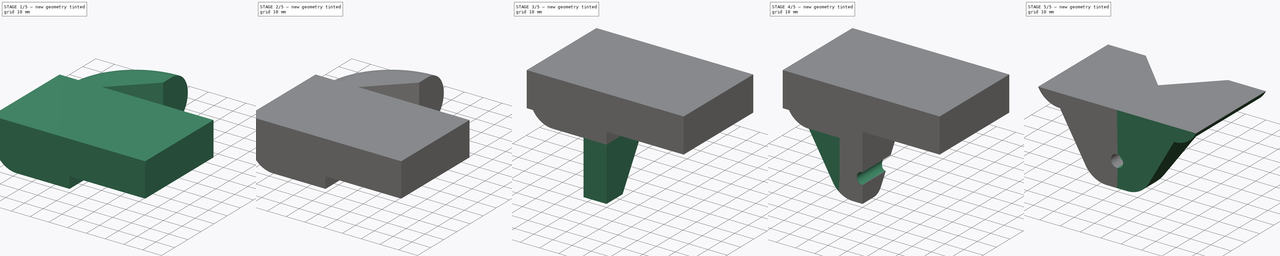
[diagram: build sequence overview — one tinted view per stage of 5, left to right]
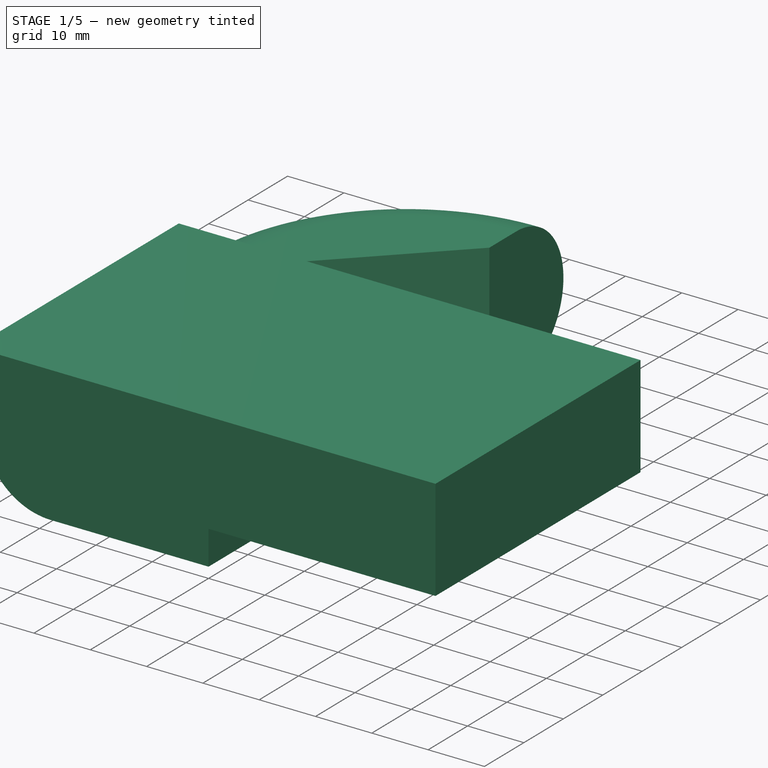
[diagram: stage 1 of 5 — iso view after this stage's code; geometry added in this stage tinted green]
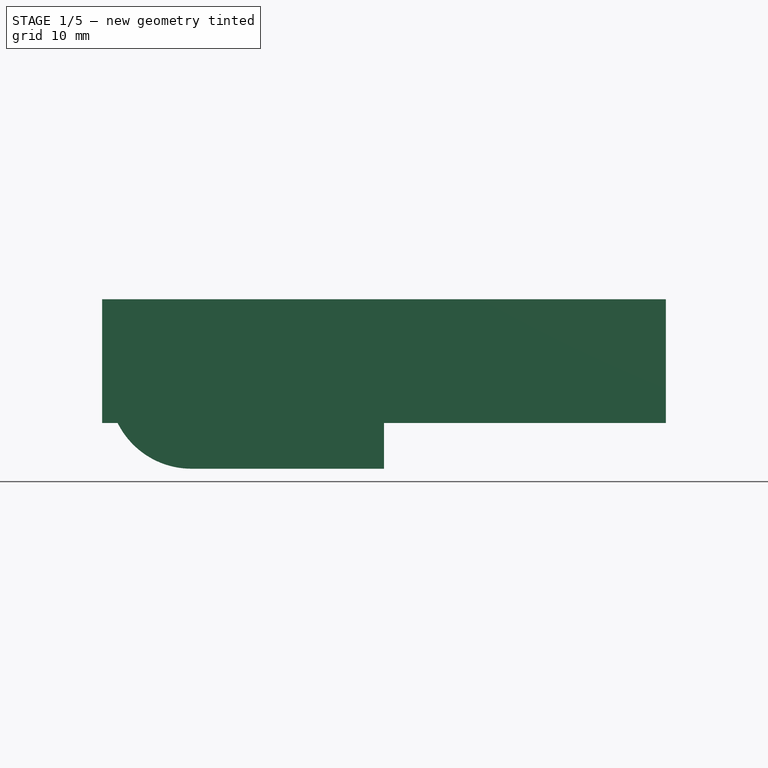
[diagram: stage 1 of 5 — front view after this stage's code; geometry added in this stage tinted green]
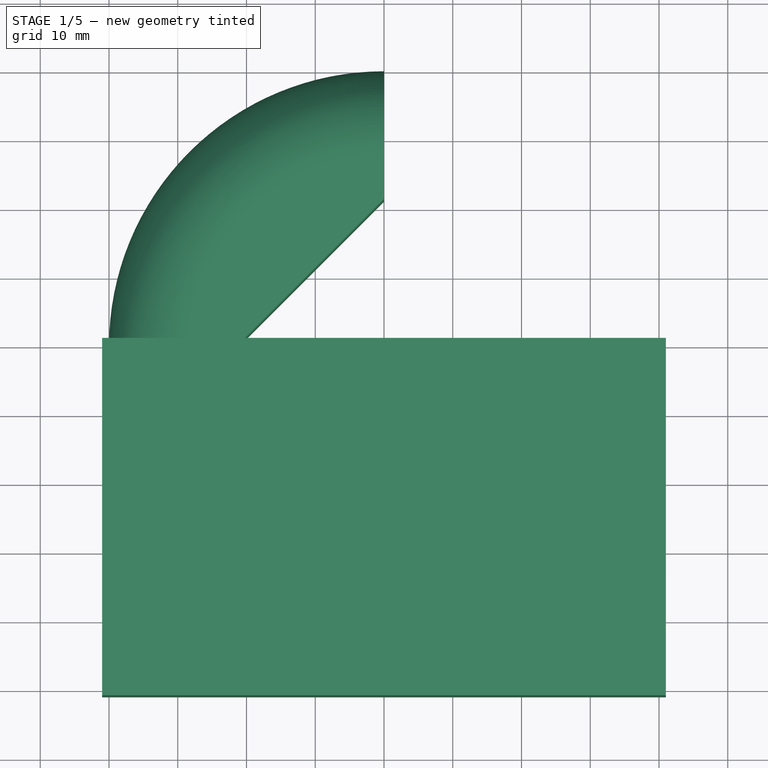
[diagram: stage 1 of 5 — top view after this stage's code; geometry added in this stage tinted green]
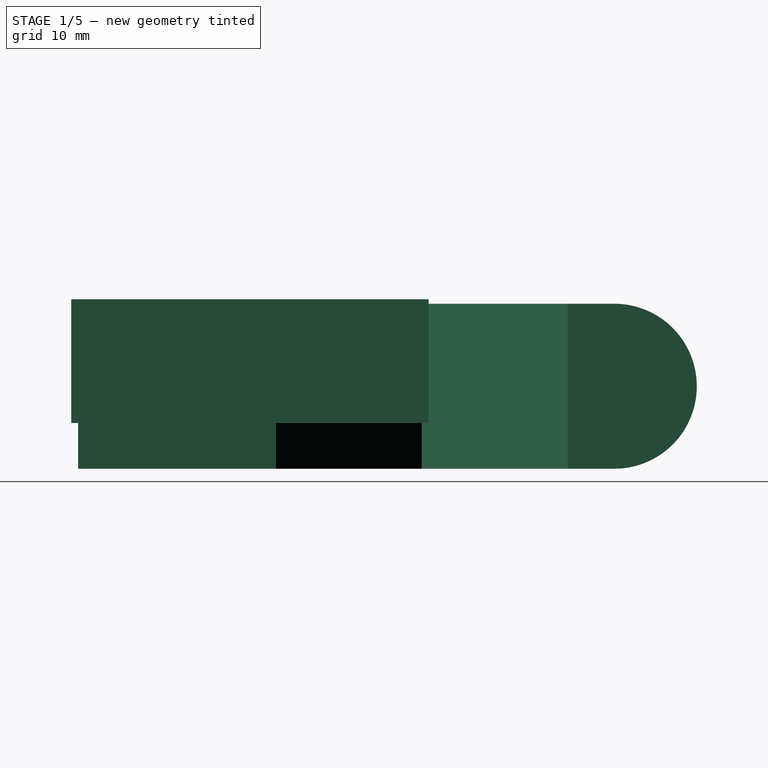
[diagram: stage 1 of 5 — right view after this stage's code; geometry added in this stage tinted green]
FCSTD DOCUMENT  (FreeCAD 0.20R29410 (Git))
Label: Cut_LinearProfileMountingDownPart
License: All rights reserved
LicenseURL: http://en.wikipedia.org/wiki/All_rights_reserved
objects: Sketcher::SketchObject×12, PartDesign::Pocket×6, PartDesign::Plane×5, PartDesign::Fillet×4, PartDesign::Hole×3, PartDesign::Pad×2, PartDesign::Chamfer×1, PartDesign::AdditiveLoft×1, PartDesign::Body×1, Part::Mirroring×1, Part::MultiFuse×1, Part::Box×1, App::Part×1, Part::Cut×1
note: 56 computed .brp shape members not serialized (recipe doc carries the construction recipe); baked Part::Feature solids carry a one-line shape summary decoded from their .brp

FEATURE [Sketcher::SketchObject] Sketch
  FullyConstrained = false
  MapMode = 5
  Support = -> [XY_Plane]
  sketch-geometry (11):
    g0: LineSegment StartX=-21.2132 StartY=50 StartZ=0 EndX=0 EndY=71.2132 EndZ=0
    g1: LineSegment StartX=0 StartY=28.7868 StartZ=0 EndX=-21.2132 EndY=50 EndZ=0
    g2: LineSegment StartX=-40 StartY=50 StartZ=0 EndX=36.3665 EndY=50 EndZ=0
    g3: GeomPoint X=0 Y=50 Z=0
    g4: LineSegment StartX=-40 StartY=50 StartZ=0 EndX=-40 EndY=0 EndZ=0
    g5: LineSegment StartX=-40 StartY=0 StartZ=0 EndX=-40 EndY=15 EndZ=0
    g6: GeomPoint X=0 Y=0 Z=0
    g7: ArcOfCircle CenterX=0 CenterY=50 CenterZ=0 NormalX=0 NormalY=0 NormalZ=1 AngleXU=0 Radius=40 StartAngle=1.5708 EndAngle=3.14159
    g8: LineSegment StartX=-40 StartY=0 StartZ=0 EndX=0 EndY=0 EndZ=0
    g9: LineSegment StartX=0 StartY=0 StartZ=0 EndX=0 EndY=28.7868 EndZ=0
    g10: LineSegment StartX=0 StartY=71.2132 StartZ=0 EndX=2.4e-15 EndY=90 EndZ=0
  constraints (29):
    c: PointOnObject(g0,g-2)
    c: Coincident(g1,g0)
    c: Coincident(g2,g7)
    c: Horizontal(g2)
    c: DistanceY(g7,g0) = 0
    c: DistanceX(g2,g2) = 76.3665
    c: Coincident(g4,g7)
    c: PointOnObject(g4,g-1)
    c: Vertical(g4)
    c: PointOnObject(g5,g-1)
    c: Vertical(g5)
    c: DistanceY(g5,g5) = 15
    c: Coincident(g6,g-1)
    c: PointOnObject(g7,g-2)
    c: Radius(g7) = 40
    c: Coincident(g4,g8)
    c: Coincident(g8,g6)
    c: Coincident(g8,g9)
    c: Coincident(g9,g1)
    c: Vertical(g9)
    c: Coincident(g10,g0)
    c: Coincident(g10,g7)
    c: Coincident(g7,g3)
    c: DistanceY(g8,g7) = 50
    c: PointOnObject(g7,g-2)
    c: Equal(g0,g1)
    c: Distance(g0) = 30
    c: Perpendicular(g1,g0)
    c: DistanceY(g7,g0) = 0
FEATURE [PartDesign::Pad] Pad
  Direction = (0,0,1)
  Length = 24
  Length2 = 10
  Profile = -> Sketch
  ReferenceAxis = -> Sketch [N_Axis]
  Type = 0
FEATURE [Sketcher::SketchObject] Sketch001
  ExternalGeometry = -> [Pad]
  FullyConstrained = true
  MapMode = 5
  Placement = pos=(0,0,0) rot=(1,0,0;1.5708rad)
  Support = -> [Pad]
FEATURE [PartDesign::Fillet] Fillet
  Base = -> Pad [Edge10]
  BaseFeature = -> Pad
  Radius = 11.99
  SupportTransform = false
  UseAllEdges = false
FEATURE [PartDesign::Fillet] Fillet001
  Base = -> Fillet [Edge7]
  BaseFeature = -> Fillet
  Radius = 11.99
  SupportTransform = false
  UseAllEdges = false
FEATURE [Part::Box] Box  label="Sześcian"
  AttacherType = Attacher::AttachEngine3D
  Height = 18
  Length = 82
  Placement = pos=(-41,-1,6.65) rot=(0,0,1;0rad)
  Width = 52
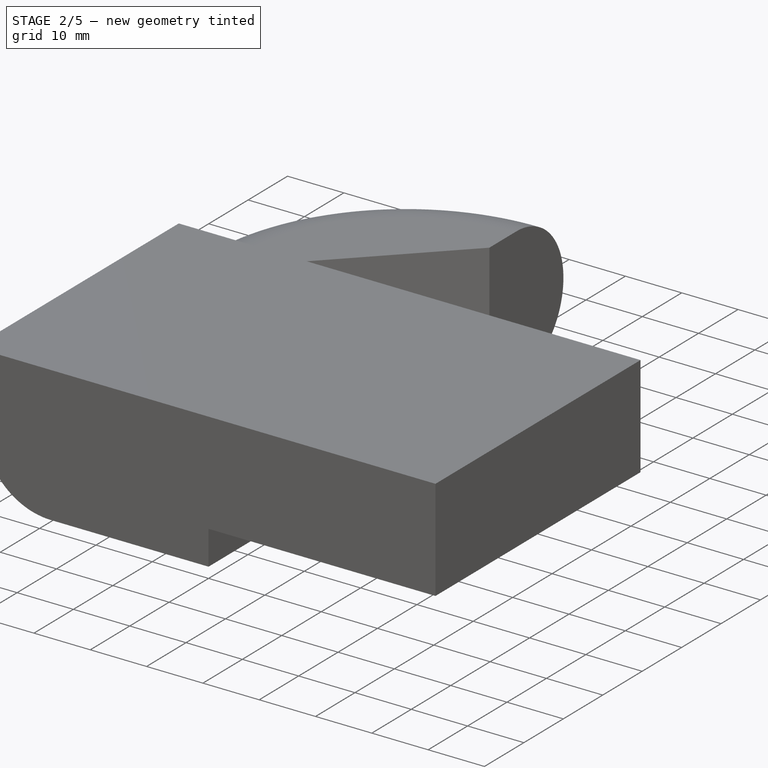
[diagram: stage 2 of 5 — iso view after this stage's code; geometry added in this stage tinted green]
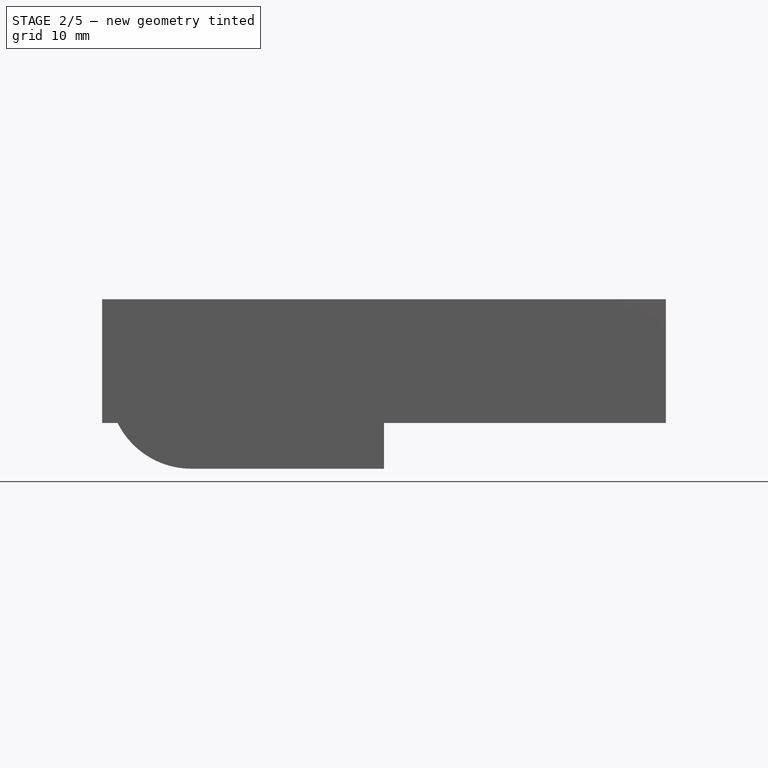
[diagram: stage 2 of 5 — front view after this stage's code; geometry added in this stage tinted green]
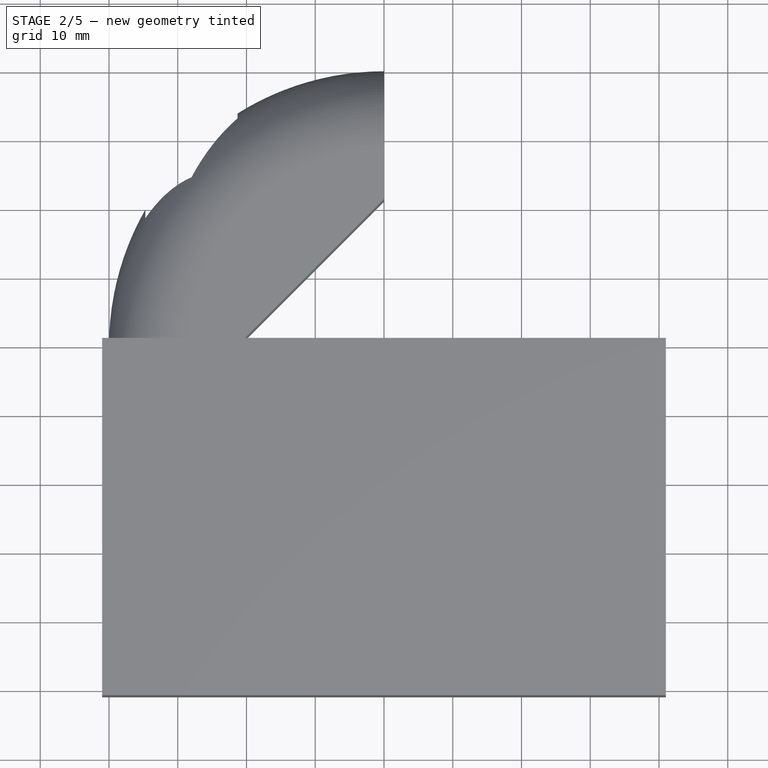
[diagram: stage 2 of 5 — top view after this stage's code; geometry added in this stage tinted green]
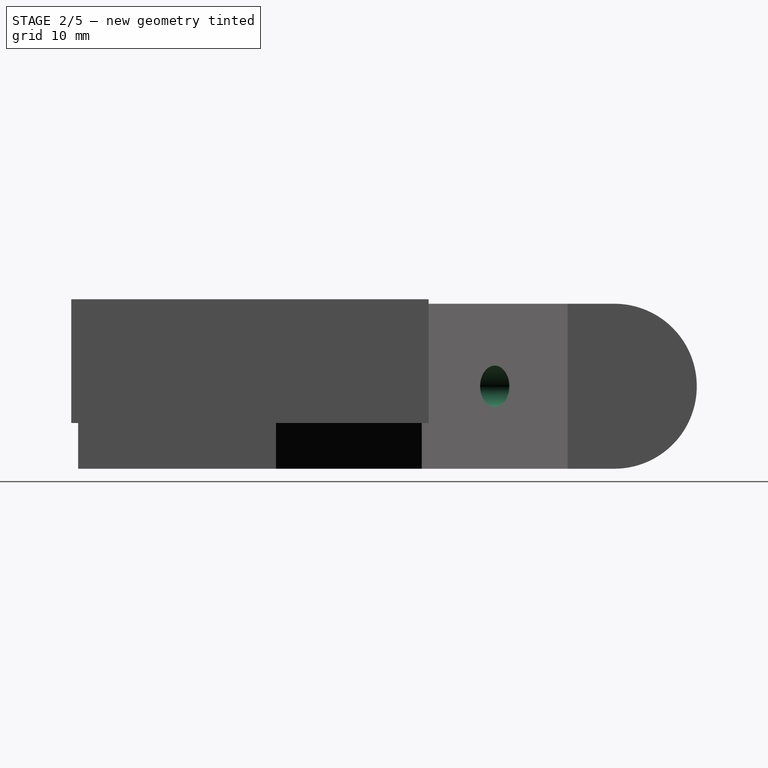
[diagram: stage 2 of 5 — right view after this stage's code; geometry added in this stage tinted green]
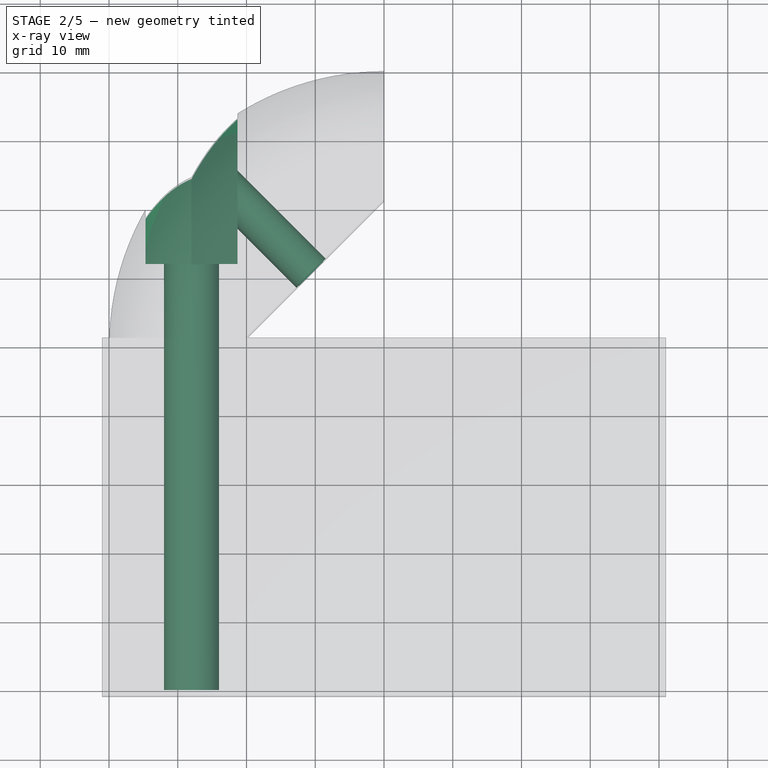
[diagram: stage 2 of 5 — x-ray composite at the top view; earlier geometry ghosted, this stage's added geometry solid]
FEATURE [Sketcher::SketchObject] Sketch002
  ExternalGeometry = -> [Fillet001]
  FullyConstrained = true
  MapMode = 5
  Placement = pos=(0,0,0) rot=(1,0,0;1.5708rad)
  Support = -> [Fillet001]
  sketch-geometry (1):
    g0: Circle CenterX=-28.01 CenterY=12.01 CenterZ=0 NormalX=0 NormalY=0 NormalZ=1 AngleXU=0 Radius=4.02
  constraints (2):
    c: Coincident(g0,g-3)
    c: Radius(g0) = 4.02
FEATURE [PartDesign::Hole] Hole
  BaseFeature = -> Fillet001
  CustomThreadClearance = 0
  Depth = 204.769
  DepthType = 1
  Diameter = 8.04
  DrillForDepth = false
  DrillPoint = 1
  DrillPointAngle = 118
  HoleCutCountersinkAngle = 90
  HoleCutCustomValues = false
  HoleCutDepth = 0
  HoleCutDiameter = 0
  HoleCutType = 0
  ModelThread = false
  Profile = -> Fillet001 [Face12]
  Reversed = true
  Tapered = false
  TaperedAngle = 90
  ThreadClass = 0
  ThreadDepth = 204.769
  ThreadDepthType = 0
  ThreadDirection = 0
  ThreadFit = 0
  ThreadSize = 0
  ThreadType = 0
  Threaded = false
  UseCustomThreadClearance = false
FEATURE [PartDesign::Pocket] Pocket
  BaseFeature = -> Hole
  Direction = (0,1,-2e-16)
  Length = 100
  Length2 = 5
  Profile = -> Sketch002
  ReferenceAxis = -> Sketch002 [N_Axis]
  Type = 0
FEATURE [PartDesign::Plane] DatumPlane
  AttachmentOffset = pos=(0,0,12) rot=(0,0,1;0rad)
  Length = 64.7388
  MapMode = 11
  Placement = pos=(-28.01,62,12.01) rot=(0.57735,0.57735,0.57735;4.18879rad)
  ResizeMode = 0
  Support = -> [Pocket]
  Width = 76.7388
FEATURE [Sketcher::SketchObject] Sketch003
  ExternalGeometry = -> [Pocket]
  FullyConstrained = true
  MapMode = 5
  Placement = pos=(-28.01,62,12.01) rot=(0.57735,0.57735,0.57735;4.18879rad)
  Support = -> [DatumPlane]
  sketch-geometry (7):
    g0: LineSegment StartX=7.73649 StartY=0 StartZ=0 EndX=3.86825 EndY=6.7 EndZ=0
    g1: LineSegment StartX=3.86825 StartY=6.7 StartZ=0 EndX=-3.86825 EndY=6.7 EndZ=0
    g2: LineSegment StartX=-3.86825 StartY=6.7 StartZ=0 EndX=-7.73649 EndY=-1.0232e-12 EndZ=0
    g3: LineSegment StartX=-7.73649 StartY=-1.0232e-12 StartZ=0 EndX=-3.86825 EndY=-6.7 EndZ=0
    g4: LineSegment StartX=-3.86825 StartY=-6.7 StartZ=0 EndX=3.86825 EndY=-6.7 EndZ=0
    g5: LineSegment StartX=3.86825 StartY=-6.7 StartZ=0 EndX=7.73649 EndY=0 EndZ=0
    g6: Circle CenterX=0 CenterY=0 CenterZ=0 NormalX=0 NormalY=0 NormalZ=1 AngleXU=0 Radius=7.73649
  constraints (16):
    c: Coincident(g0,g1)
    c: Coincident(g1,g2)
    c: Coincident(g2,g3)
    c: Coincident(g3,g4)
    c: Coincident(g4,g5)
    c: Coincident(g5,g0)
    c: Equal(g0, g1-g5) x5
    c: PointOnObject(g0,g6)
    c: PointOnObject(g1,g6)
    c: PointOnObject(g2,g6)
    c: PointOnObject(g3,g6)
    c: PointOnObject(g4,g6)
    c: PointOnObject(g5,g6)
    c: Coincident(g6,g-1)
    c: PointOnObject(g5,g-1)
    c: DistanceY(g3,g1) = 13.4
FEATURE [PartDesign::Pocket] Pocket001
  BaseFeature = -> Pocket
  Direction = (-2e-16,-1,-2e-16)
  Length = 27
  Length2 = 5
  Profile = -> Sketch003
  ReferenceAxis = -> Sketch003 [N_Axis]
  Reversed = true
  Type = 0
FEATURE [PartDesign::Plane] DatumPlane001
  Length = 64.7388
  MapMode = 11
  Placement = pos=(-28.01,50,12.01) rot=(0.57735,0.57735,0.57735;4.18879rad)
  ResizeMode = 0
  Support = -> [Pocket001]
  Width = 76.7388
FEATURE [Sketcher::SketchObject] Sketch004
  ExternalGeometry = -> [Pocket001]
  FullyConstrained = true
  MapMode = 5
  Placement = pos=(-28.01,50,12.01) rot=(0.57735,0.57735,0.57735;4.18879rad)
  Support = -> [DatumPlane001]
  sketch-geometry (4):
    g0: LineSegment StartX=-13.01 StartY=29.01 StartZ=0 EndX=12.99 EndY=29.01 EndZ=0
    g1: LineSegment StartX=12.99 StartY=29.01 StartZ=0 EndX=12.99 EndY=-12.99 EndZ=0
    g2: LineSegment StartX=12.99 StartY=-12.99 StartZ=0 EndX=-13.01 EndY=-12.99 EndZ=0
    g3: LineSegment StartX=-13.01 StartY=-12.99 StartZ=0 EndX=-13.01 EndY=29.01 EndZ=0
  constraints (12):
    c: Coincident(g0,g1)
    c: Coincident(g1,g2)
    c: Coincident(g2,g3)
    c: Coincident(g3,g0)
    c: Horizontal(g0)
    c: Horizontal(g2)
    c: Vertical(g1)
    c: Vertical(g3)
    c: DistanceX(g0,g-3) = 1
    c: DistanceY(g2,g-5) = 1
    c: DistanceX(g-4,g0) = 1
    c: DistanceY(g-6,g0) = 1
FEATURE [PartDesign::Plane] DatumPlane002
  Length = 112.723
  MapMode = 5
  Placement = pos=(-35.6066,35.6066,0) rot=(0.862856,0.357407,0.357407;1.71777rad)
  ResizeMode = 0
  Support = -> [Pocket001]
  Width = 67.435
FEATURE [Sketcher::SketchObject] Sketch005
  ExternalGeometry = -> [Pocket001]
  FullyConstrained = true
  MapMode = 5
  Placement = pos=(-35.6066,35.6066,0) rot=(0.862856,0.357407,0.357407;1.71777rad)
  Support = -> [DatumPlane002]
  sketch-geometry (1):
    g0: Circle CenterX=35.3553 CenterY=12 CenterZ=0 NormalX=0 NormalY=0 NormalZ=1 AngleXU=0 Radius=4.02
  constraints (2):
    c: Radius(g0) = 4.02
    c: Symmetric(g-4,g-3,g0)
FEATURE [PartDesign::Hole] Hole001
  BaseFeature = -> Pocket001
  CustomThreadClearance = 0
  Depth = 204.769
  DepthType = 1
  Diameter = 6
  DrillForDepth = false
  DrillPoint = 1
  DrillPointAngle = 118
  HoleCutCountersinkAngle = 90
  HoleCutCustomValues = false
  HoleCutDepth = 0
  HoleCutDiameter = 6.1
  HoleCutType = 0
  ModelThread = false
  Profile = -> Sketch005
  Tapered = false
  TaperedAngle = 90
  ThreadClass = 0
  ThreadDepth = 204.769
  ThreadDepthType = 0
  ThreadDirection = 0
  ThreadFit = 0
  ThreadSize = 0
  ThreadType = 0
  Threaded = false
  UseCustomThreadClearance = false
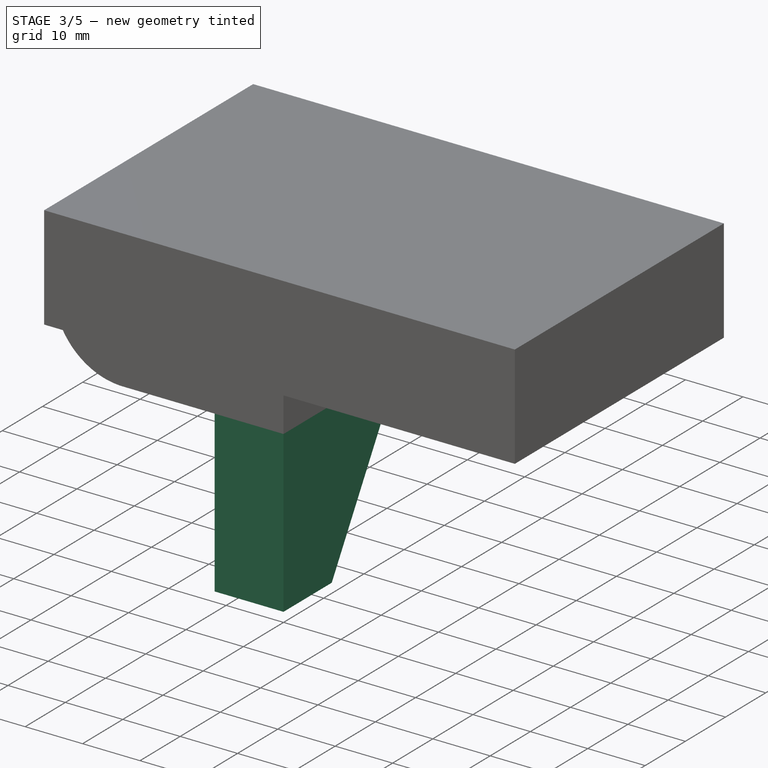
[diagram: stage 3 of 5 — iso view after this stage's code; geometry added in this stage tinted green]
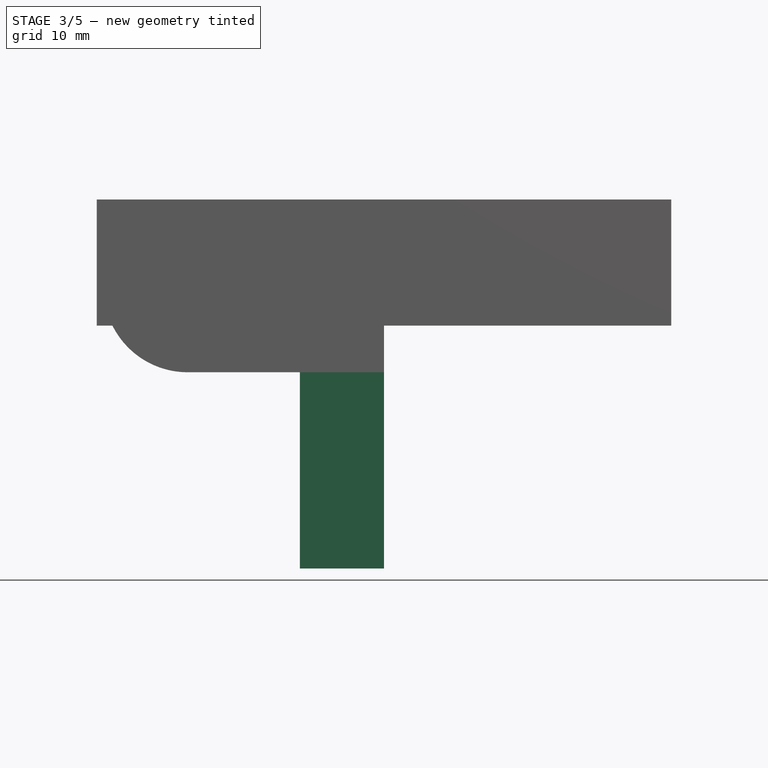
[diagram: stage 3 of 5 — front view after this stage's code; geometry added in this stage tinted green]
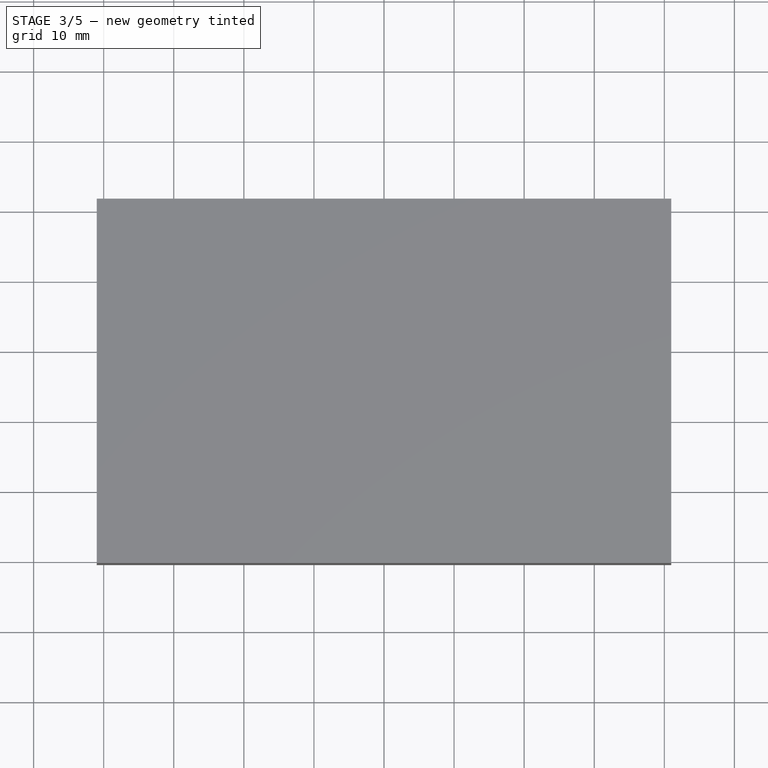
[diagram: stage 3 of 5 — top view after this stage's code; geometry added in this stage tinted green]
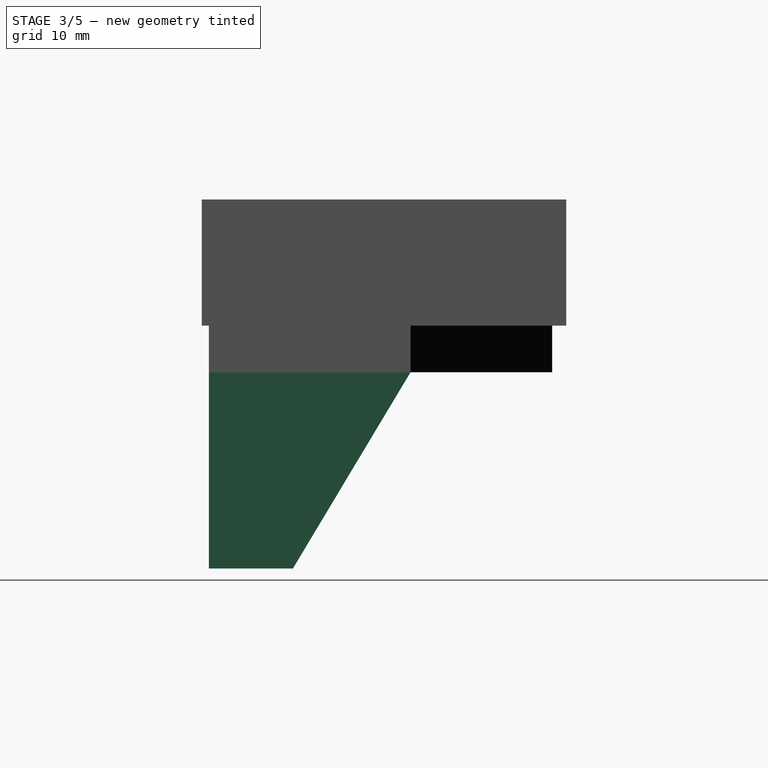
[diagram: stage 3 of 5 — right view after this stage's code; geometry added in this stage tinted green]
FEATURE [PartDesign::Plane] DatumPlane003
  AttachmentOffset = pos=(0,0,-6) rot=(0,0,1;0rad)
  Length = 112.723
  MapMode = 5
  Placement = pos=(-39.8492,39.8492,0) rot=(0.862856,0.357407,0.357407;1.71777rad)
  ResizeMode = 0
  Support = -> [Hole001]
  Width = 67.435
FEATURE [Sketcher::SketchObject] Sketch006
  ExternalGeometry = -> [Hole001]
  FullyConstrained = true
  MapMode = 5
  Placement = pos=(-39.8492,39.8492,0) rot=(0.862856,0.357407,0.357407;1.71777rad)
  Support = -> [DatumPlane003]
  sketch-geometry (1):
    g0: Circle CenterX=35.3553 CenterY=12 CenterZ=0 NormalX=0 NormalY=0 NormalZ=1 AngleXU=0 Radius=6.5
  constraints (2):
    c: Coincident(g0,g-3)
    c: Radius(g0) = 6.5
FEATURE [PartDesign::Pocket] Pocket002
  BaseFeature = -> Hole001
  Direction = (-0.707107,0.707107,0)
  Length = 18
  Length2 = 5
  Profile = -> Sketch006
  ReferenceAxis = -> Sketch006 [N_Axis]
  Type = 0
FEATURE [PartDesign::Chamfer] Chamfer
  Angle = 45
  Base = -> Pocket002 [Edge64]
  BaseFeature = -> Pocket002
  ChamferType = 0
  FlipDirection = false
  Size = 3.4
  Size2 = 1
  SupportTransform = false
  UseAllEdges = false
  expr: Size = 3.4
FEATURE [PartDesign::Pocket] Pocket003
  BaseFeature = -> Chamfer
  Direction = (-2e-16,-1,-1e-16)
  Length = 500
  Length2 = 5
  Profile = -> DatumPlane001
  Reversed = true
  Type = 0
FEATURE [PartDesign::Pocket] Pocket004
  BaseFeature = -> Pocket003
  Direction = (-2e-16,-1,-2e-16)
  Length = 1
  Length2 = 5
  Profile = -> Sketch004
  ReferenceAxis = -> Sketch004 [N_Axis]
  Type = 0
FEATURE [Sketcher::SketchObject] Sketch007
  ExternalGeometry = -> [Pocket004]
  FullyConstrained = true
  MapMode = 5
  Placement = pos=(0,0,0) rot=(0.57735,0.57735,0.57735;2.0944rad)
  Support = -> [Pocket004]
  sketch-geometry (7):
    g0: LineSegment StartX=0 StartY=0 StartZ=0 EndX=0 EndY=-28 EndZ=0
    g1: LineSegment StartX=0 StartY=-28 StartZ=0 EndX=12 EndY=-28 EndZ=0
    g2: LineSegment StartX=12 StartY=-28 StartZ=0 EndX=28.7868 EndY=0 EndZ=0
    g3: GeomPoint X=0 Y=12 Z=0
    g4: LineSegment StartX=0 StartY=0 StartZ=0 EndX=0 EndY=1 EndZ=0
    g5: LineSegment StartX=0 StartY=1 StartZ=0 EndX=28.7868 EndY=1 EndZ=0
    g6: LineSegment StartX=28.7868 StartY=1 StartZ=0 EndX=28.7868 EndY=0 EndZ=0
  constraints (17):
    c: Coincident(g-1,g0)
    c: PointOnObject(g0,g-2)
    c: Coincident(g0,g1)
    c: Horizontal(g1)
    c: Coincident(g1,g2)
    c: Symmetric(g-3,g0,g3)
    c: DistanceY(g0,g3) = 40
    c: DistanceX(g1,g1) = 12
    c: Coincident(g2,g-4)
    c: Coincident(g0,g4)
    c: Vertical(g4)
    c: Coincident(g4,g5)
    c: PointOnObject(g5,g-4)
    c: Horizontal(g5)
    c: Coincident(g5,g6)
    c: Coincident(g6,g2)
    c: DistanceY(g6,g6) = 1
FEATURE [PartDesign::Pad] Pad001
  BaseFeature = -> Pocket004
  Direction = (1,0,0)
  Length = 12
  Length2 = 10
  Profile = -> Sketch007
  ReferenceAxis = -> Sketch007 [N_Axis]
  Reversed = true
  Type = 0
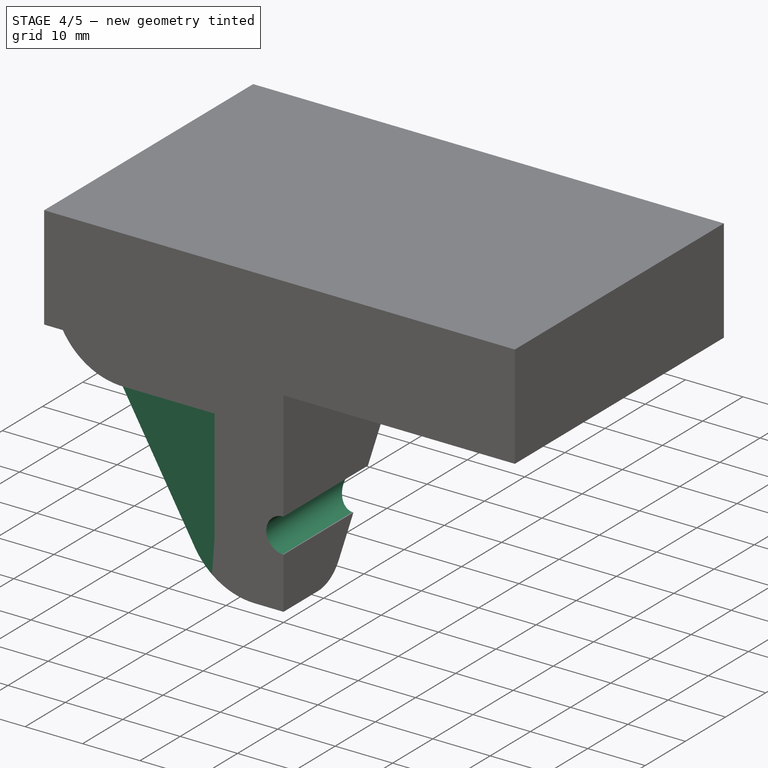
[diagram: stage 4 of 5 — iso view after this stage's code; geometry added in this stage tinted green]
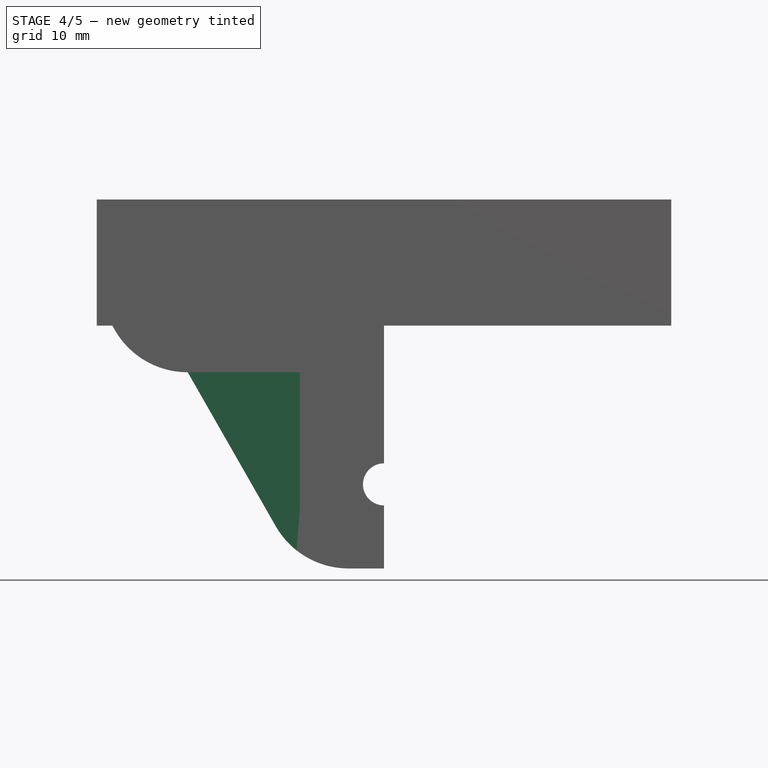
[diagram: stage 4 of 5 — front view after this stage's code; geometry added in this stage tinted green]
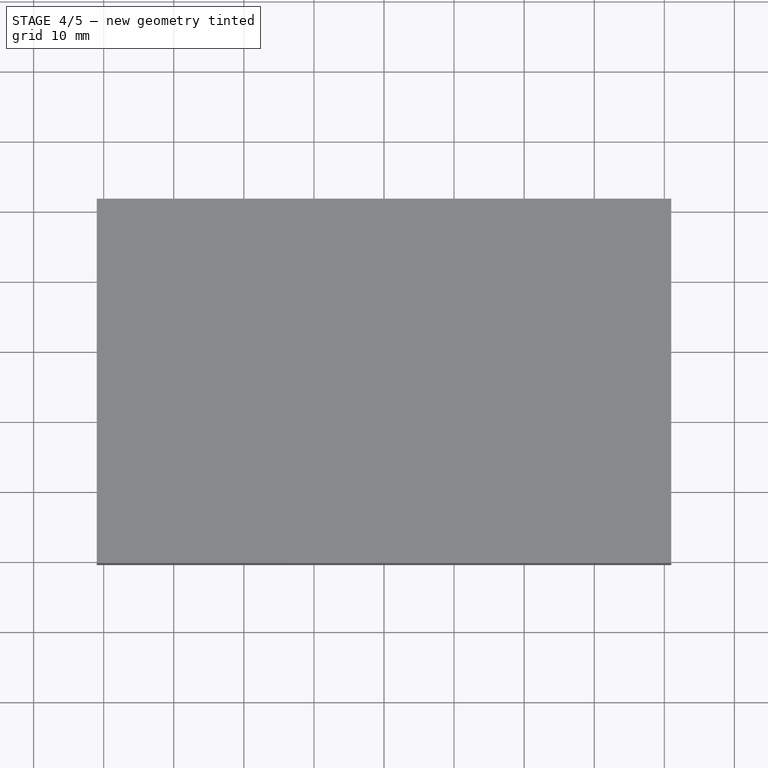
[diagram: stage 4 of 5 — top view after this stage's code; geometry added in this stage tinted green]
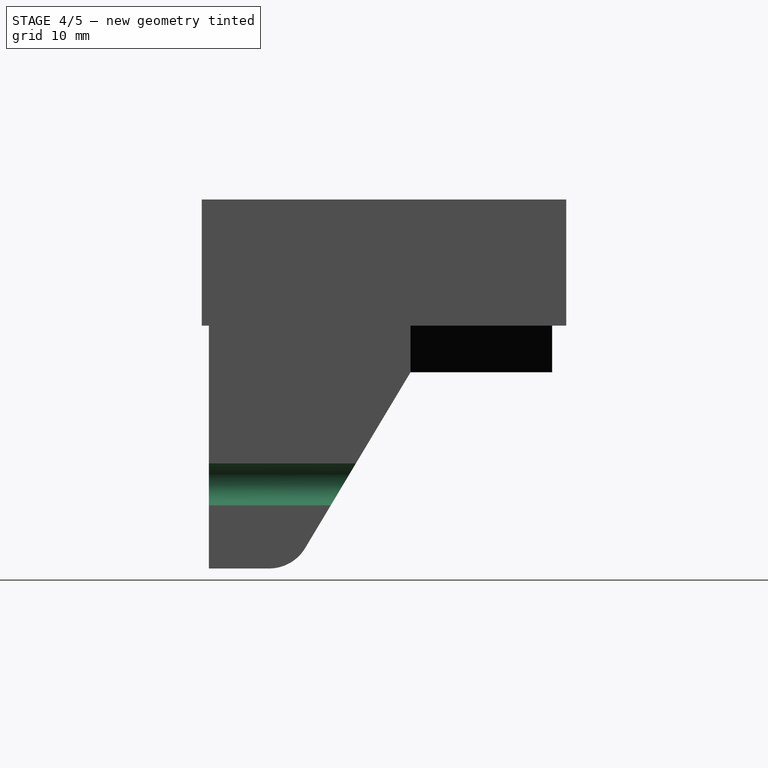
[diagram: stage 4 of 5 — right view after this stage's code; geometry added in this stage tinted green]
FEATURE [Sketcher::SketchObject] Sketch008
  ExternalGeometry = -> [Pad001]
  FullyConstrained = true
  MapMode = 5
  Placement = pos=(0,0,-28) rot=(1,0,0;3.14159rad)
  Support = -> [Pad001]
  sketch-geometry (4):
    g0: LineSegment StartX=-12 StartY=-12 StartZ=0 EndX=0 EndY=-12 EndZ=0
    g1: LineSegment StartX=0 StartY=-12 StartZ=0 EndX=0 EndY=0 EndZ=0
    g2: LineSegment StartX=0 StartY=0 StartZ=0 EndX=-12 EndY=0 EndZ=0
    g3: LineSegment StartX=-12 StartY=0 StartZ=0 EndX=-12 EndY=-12 EndZ=0
  constraints (10):
    c: Coincident(g0,g1)
    c: Coincident(g1,g2)
    c: Coincident(g2,g3)
    c: Coincident(g3,g0)
    c: Horizontal(g0)
    c: Horizontal(g2)
    c: Vertical(g1)
    c: Vertical(g3)
    c: Coincident(g0,g-3)
    c: Coincident(g1,g-5)
FEATURE [Sketcher::SketchObject] Sketch009
  ExternalGeometry = -> [Pad001]
  FullyConstrained = true
  MapMode = 5
  Placement = pos=(0,0,0) rot=(1,0,0;3.14159rad)
  Support = -> [Pad001]
  sketch-geometry (4):
    g0: LineSegment StartX=0 StartY=-28.7868 StartZ=0 EndX=-28.01 EndY=-28.7868 EndZ=0
    g1: LineSegment StartX=-28.01 StartY=-28.7868 StartZ=0 EndX=-28.01 EndY=0 EndZ=0
    g2: LineSegment StartX=-28.01 StartY=0 StartZ=0 EndX=0 EndY=0 EndZ=0
    g3: LineSegment StartX=0 StartY=0 StartZ=0 EndX=0 EndY=-28.7868 EndZ=0
  constraints (10):
    c: Coincident(g0,g1)
    c: Coincident(g1,g2)
    c: Coincident(g2,g3)
    c: Coincident(g3,g0)
    c: Horizontal(g0)
    c: Horizontal(g2)
    c: Vertical(g1)
    c: Vertical(g3)
    c: Coincident(g0,g-6)
    c: Coincident(g1,g-4)
FEATURE [PartDesign::AdditiveLoft] AdditiveLoft
  BaseFeature = -> Pad001
  Closed = false
  Profile = -> Sketch008
  Ruled = false
  Sections = -> [Sketch009]
FEATURE [Sketcher::SketchObject] Sketch010
  FullyConstrained = false
  MapMode = 5
  Placement = pos=(0,0,0) rot=(1,0,0;1.5708rad)
  sketch-geometry (1):
    g0: Circle CenterX=0 CenterY=-16 CenterZ=0 NormalX=0 NormalY=0 NormalZ=1 AngleXU=0 Radius=4.02
  constraints (2):
    c: PointOnObject(g0,g-2)
    c: Radius(g0) = 4.02
FEATURE [PartDesign::Hole] Hole002
  BaseFeature = -> AdditiveLoft
  CustomThreadClearance = 0
  Depth = 169.521
  DepthType = 1
  Diameter = 6
  DrillForDepth = false
  DrillPoint = 1
  DrillPointAngle = 118
  HoleCutCountersinkAngle = 90
  HoleCutCustomValues = false
  HoleCutDepth = 0
  HoleCutDiameter = 6.1
  HoleCutType = 0
  ModelThread = false
  Profile = -> Sketch010
  Tapered = false
  TaperedAngle = 90
  ThreadClass = 0
  ThreadDepth = 169.521
  ThreadDepthType = 0
  ThreadDirection = 0
  ThreadFit = 0
  ThreadSize = 0
  ThreadType = 0
  Threaded = false
  UseCustomThreadClearance = false
FEATURE [PartDesign::Fillet] Fillet002
  Base = -> Hole002 [Edge50]
  BaseFeature = -> Hole002
  Radius = 12
  SupportTransform = false
  UseAllEdges = false
FEATURE [PartDesign::Fillet] Fillet003
  Base = -> Fillet002 [Edge9]
  BaseFeature = -> Fillet002
  Radius = 6
  SupportTransform = false
  UseAllEdges = false
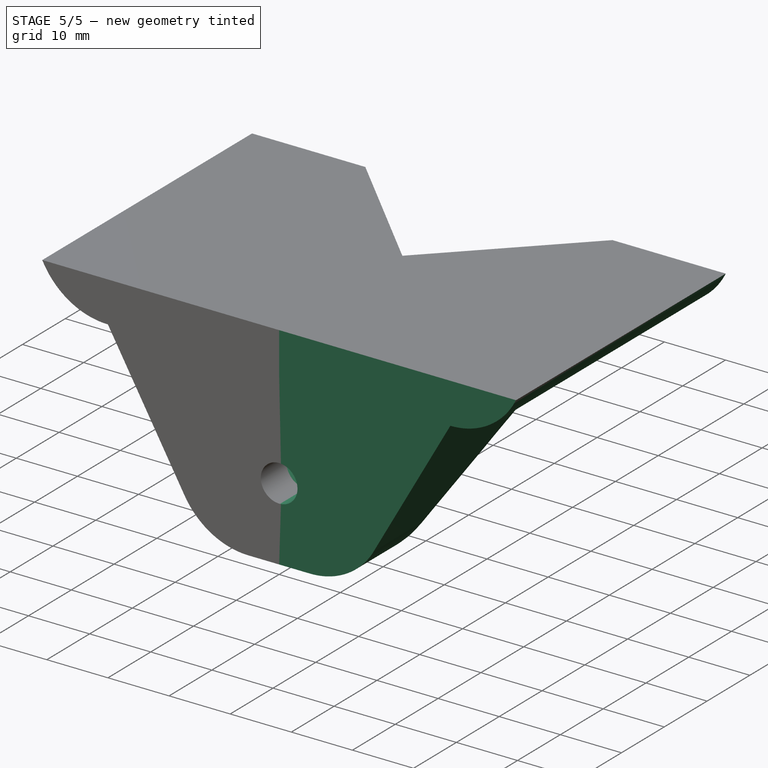
[diagram: stage 5 of 5 — iso view after this stage's code; geometry added in this stage tinted green]
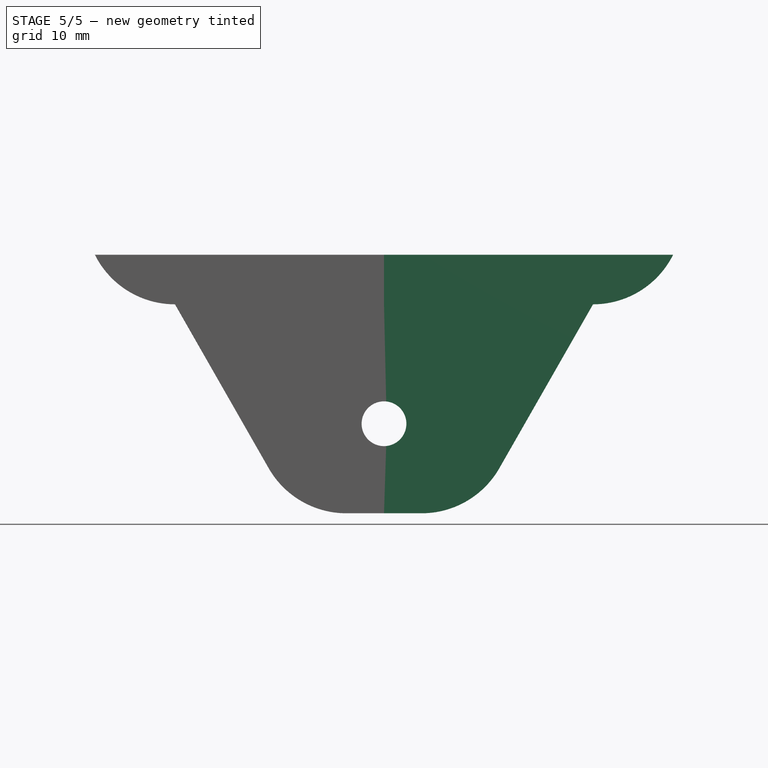
[diagram: stage 5 of 5 — front view after this stage's code; geometry added in this stage tinted green]
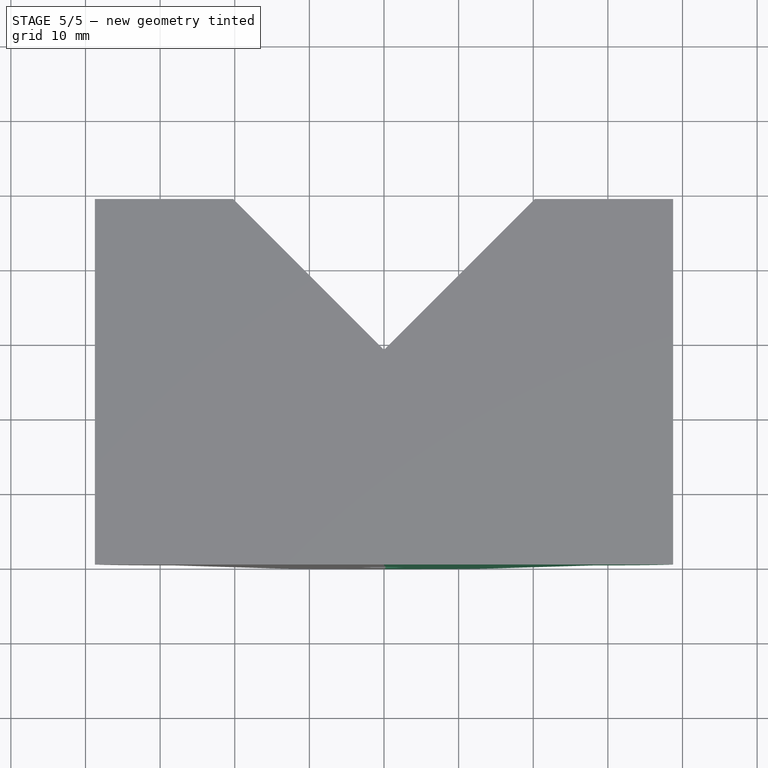
[diagram: stage 5 of 5 — top view after this stage's code; geometry added in this stage tinted green]
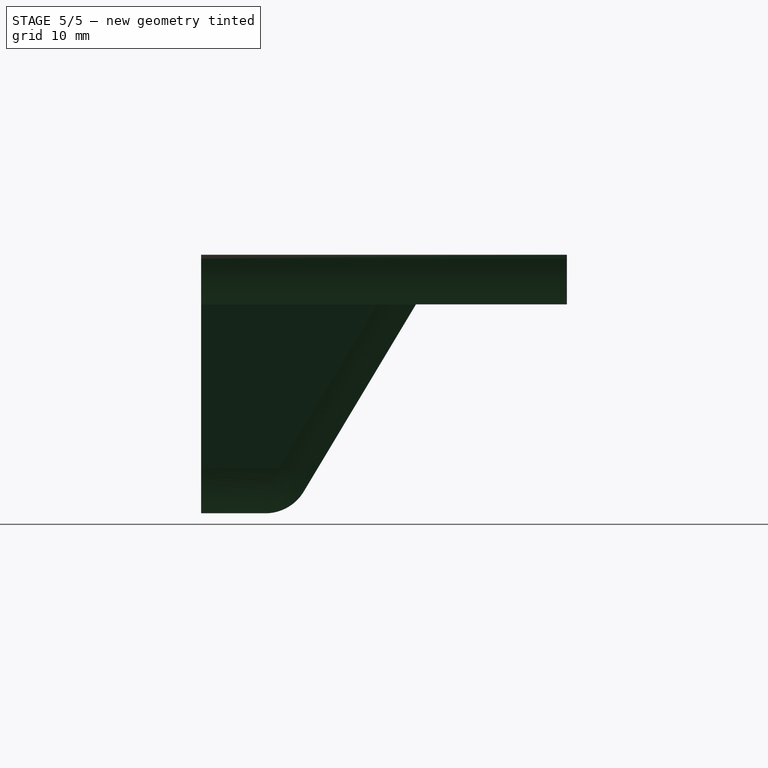
[diagram: stage 5 of 5 — right view after this stage's code; geometry added in this stage tinted green]
FEATURE [PartDesign::Plane] DatumPlane004
  AttachmentOffset = pos=(0,0,-6) rot=(0,0,1;0rad)
  Length = 76.7388
  MapMode = 5
  Placement = pos=(0,6,-1.3e-15) rot=(1,0,0;1.5708rad)
  ResizeMode = 0
  Support = -> [Fillet003]
  Width = 64.7388
FEATURE [Sketcher::SketchObject] Sketch011
  ExternalGeometry = -> [Fillet003]
  FullyConstrained = true
  MapMode = 5
  Placement = pos=(0,6,-1.3e-15) rot=(1,0,0;1.5708rad)
  Support = -> [DatumPlane004]
  sketch-geometry (7):
    g0: LineSegment StartX=7.79423 StartY=-16 StartZ=0 EndX=3.89711 EndY=-9.25 EndZ=0
    g1: LineSegment StartX=3.89711 StartY=-9.25 StartZ=0 EndX=-3.89711 EndY=-9.25 EndZ=0
    g2: LineSegment StartX=-3.89711 StartY=-9.25 StartZ=0 EndX=-7.79423 EndY=-16 EndZ=0
    g3: LineSegment StartX=-7.79423 StartY=-16 StartZ=0 EndX=-3.89711 EndY=-22.75 EndZ=0
    g4: LineSegment StartX=-3.89711 StartY=-22.75 StartZ=0 EndX=3.89711 EndY=-22.75 EndZ=0
    g5: LineSegment StartX=3.89711 StartY=-22.75 StartZ=0 EndX=7.79423 EndY=-16 EndZ=0
    g6: Circle CenterX=0 CenterY=-16 CenterZ=0 NormalX=0 NormalY=0 NormalZ=1 AngleXU=0 Radius=7.79423
  constraints (16):
    c: Coincident(g0,g1)
    c: Coincident(g1,g2)
    c: Coincident(g2,g3)
    c: Coincident(g3,g4)
    c: Coincident(g4,g5)
    c: Coincident(g5,g0)
    c: Equal(g0, g1-g5) x5
    c: PointOnObject(g0,g6)
    c: PointOnObject(g1,g6)
    c: PointOnObject(g2,g6)
    c: PointOnObject(g3,g6)
    c: PointOnObject(g4,g6)
    c: PointOnObject(g5,g6)
    c: Coincident(g6,g-3)
    c: Horizontal(g1)
    c: DistanceY(g3,g1) = 13.5
FEATURE [PartDesign::Pocket] Pocket005
  BaseFeature = -> Fillet003
  Direction = (0,1,-2e-16)
  Length = 21
  Length2 = 5
  Profile = -> Sketch011
  ReferenceAxis = -> Sketch011 [N_Axis]
  Type = 0
FEATURE [PartDesign::Body] Body
  Group = -> [Sketch,Pad,Sketch001,Fillet,Fillet001,Sketch002,Hole,Pocket,DatumPlane,Sketch003,Pocket001,DatumPlane001,Sketch004,DatumPlane002,Sketch005,Hole001,DatumPlane003,Sketch006,Pocket002,Chamfer,Pocket003,Pocket004,Sketch007,Pad001,Sketch008,Sketch009,AdditiveLoft,Sketch010,Hole002,Fillet002,Fillet003,DatumPlane004,Sketch011,Pocket005]
  Origin = -> Origin
  Tip = -> Pocket005
FEATURE [Part::Mirroring] Part__Mirroring  label="Body (Mirror #1)"
  Base = (0,0,0)
  Normal = (1,0,0)
  Source = -> Body
FEATURE [Part::MultiFuse] Fusion
  Shapes = -> [Body,Part__Mirroring]
FEATURE [App::Part] Part
  Group = -> [Box]
  Origin = -> Origin001
FEATURE [Part::Cut] Cut
  Base = -> Fusion
  Tool = -> Part
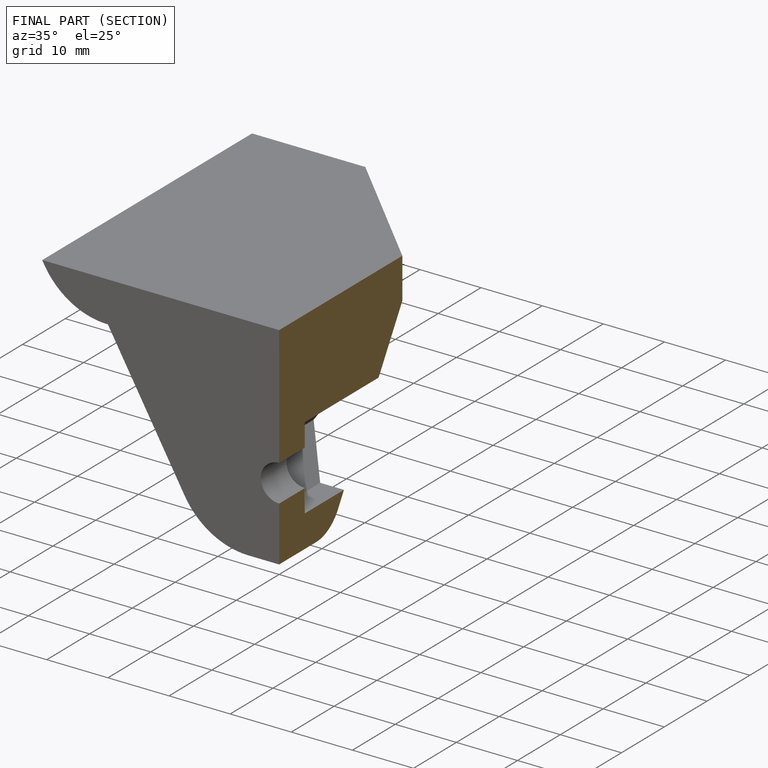
[diagram: finished part — half-section view (interior)]
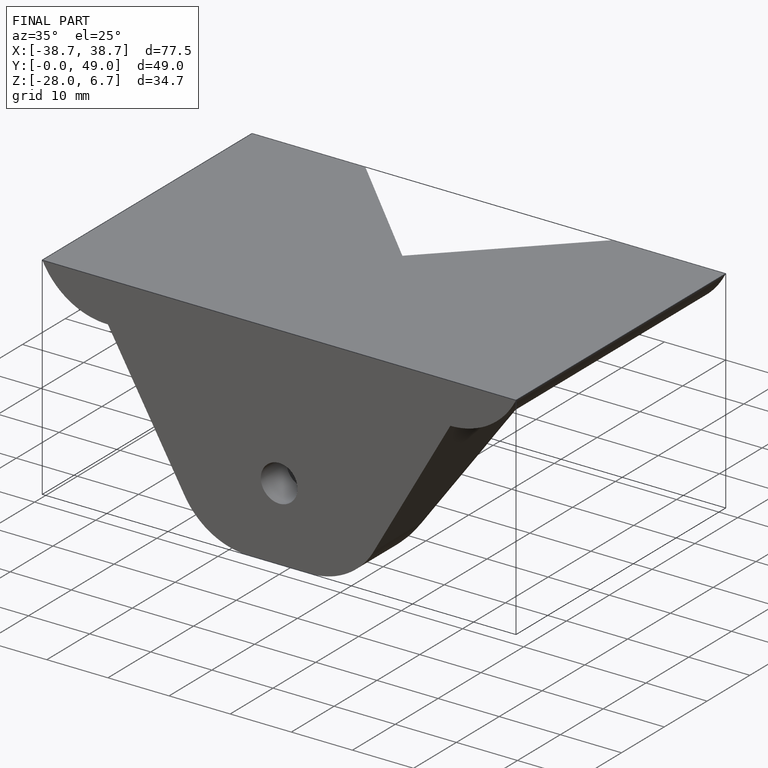
[diagram: finished part — iso view with bounding-box wireframe]
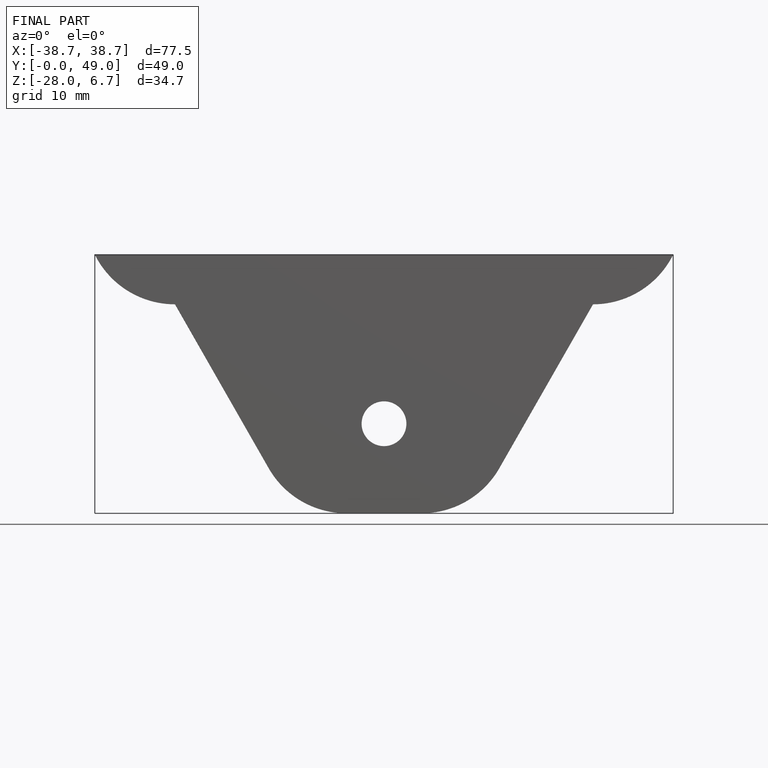
[diagram: finished part — front view with bounding-box wireframe]
